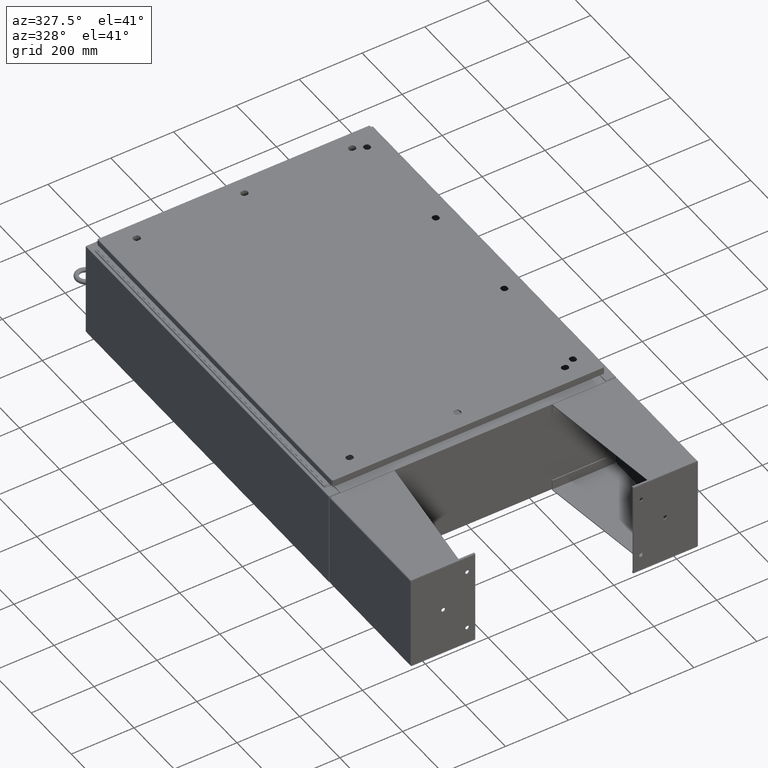
[diagram: clean part render]
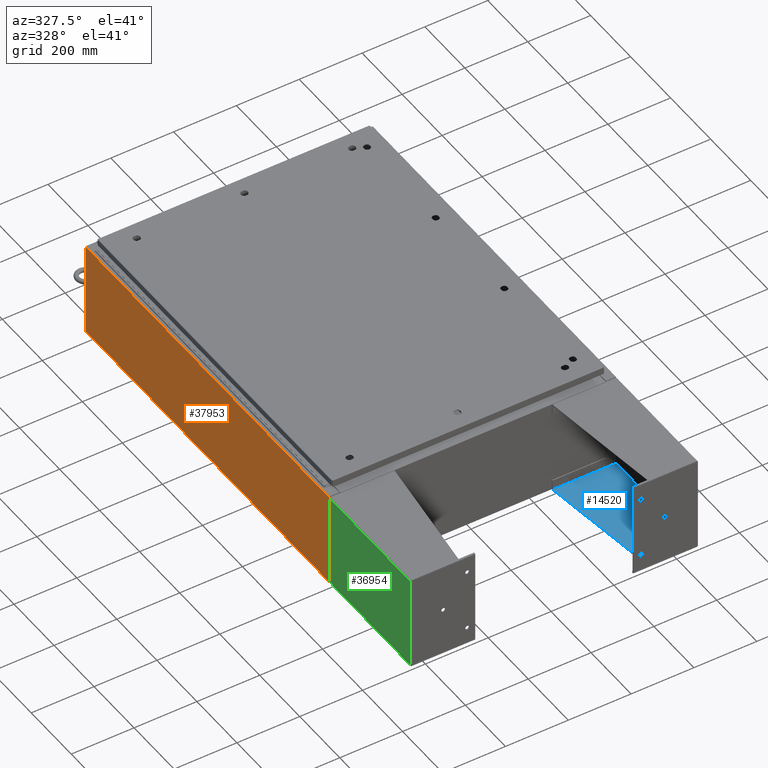
[diagram: same view with three faces highlighted in distinct colors, each labeled with its STEP entity id]
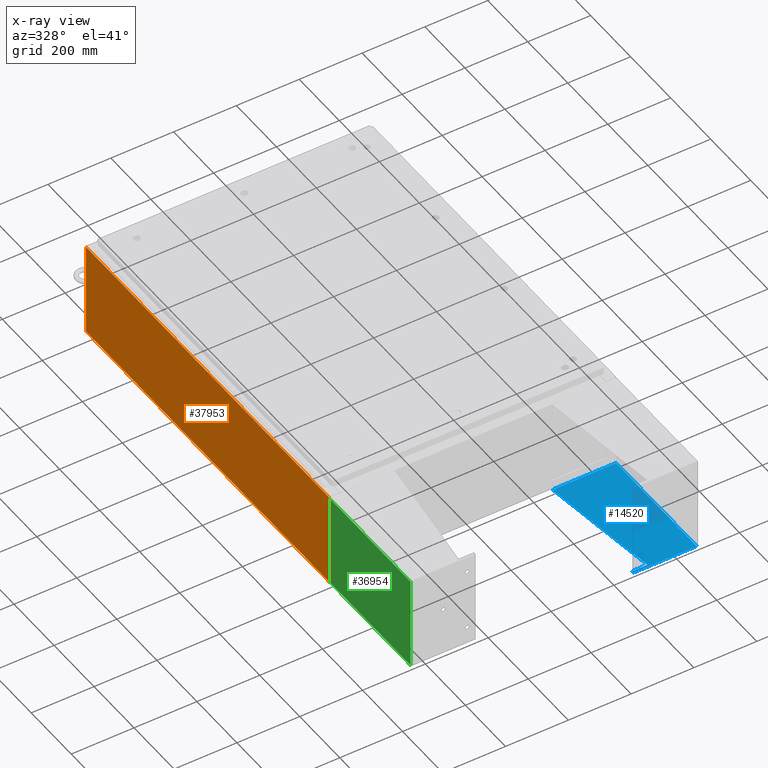
[diagram: x-ray of the same camera — body ghosted, the three highlighted faces saturated]
A machine part, auxiliary view with three faces highlighted in distinct colors.
The next image is the same camera in x-ray (body ghosted, the three faces saturated) — at least one of them is partly hidden behind the body in this view.
Their STEP definitions:

[orange] entity #37953 — the highlighted planar face has unit normal (1, 0, 0).
#998 = CARTESIAN_POINT ( 'NONE',  ( -18.00000000000000400, 23.92529999999998900, 0.01299999999999984700 ) ) ;
#3640 = EDGE_LOOP ( 'NONE', ( #8777, #32469, #11163, #16586 ) ) ;
#5672 = EDGE_CURVE ( 'NONE', #16894, #41294, #24012, .T. ) ;
#6476 = PLANE ( 'NONE',  #31531 ) ;
#7401 = EDGE_CURVE ( 'NONE', #42002, #9453, #27108, .T. ) ;
#8777 = ORIENTED_EDGE ( 'NONE', *, *, #5672, .T. ) ;
#9453 = VERTEX_POINT ( 'NONE', #998 ) ;
#10872 = CARTESIAN_POINT ( 'NONE',  ( -18.00000000000000400, 23.92529999999998900, 0.01299999999999984700 ) ) ;
#10925 = CARTESIAN_POINT ( 'NONE',  ( -18.00000000000004600, -23.92529999999998600, 11.83760000000000200 ) ) ;
#11163 = ORIENTED_EDGE ( 'NONE', *, *, #7401, .F. ) ;
#11809 = VECTOR ( 'NONE', #18725, 39.37007874015748100 ) ;
#12086 = CARTESIAN_POINT ( 'NONE',  ( -18.00000000000004600, 23.92529999999998900, 11.83760000000000200 ) ) ;
#15593 = DIRECTION ( 'NONE',  ( 3.482016343714355500E-015, 0.0000000000000000000, -1.000000000000000000 ) ) ;
#16586 = ORIENTED_EDGE ( 'NONE', *, *, #33296, .T. ) ;
#16695 = VECTOR ( 'NONE', #15593, 39.37007874015748100 ) ;
#16894 = VERTEX_POINT ( 'NONE', #10925 ) ;
#18725 = DIRECTION ( 'NONE',  ( 0.0000000000000000000, 1.000000000000000000, 0.0000000000000000000 ) ) ;
#18930 = DIRECTION ( 'NONE',  ( 1.000000000000000000, 0.0000000000000000000, 3.482016343714355100E-015 ) ) ;
#24012 = LINE ( 'NONE', #47504, #11809 ) ;
#24136 = FACE_OUTER_BOUND ( 'NONE', #3640, .T. ) ;
#27108 = LINE ( 'NONE', #10872, #28414 ) ;
#28414 = VECTOR ( 'NONE', #43740, 39.37007874015748100 ) ;
#30641 = CARTESIAN_POINT ( 'NONE',  ( -18.00000000000000400, -23.92529999999998600, 0.01299999999999984700 ) ) ;
#31531 = AXIS2_PLACEMENT_3D ( 'NONE', #51665, #18930, #47697 ) ;
#32469 = ORIENTED_EDGE ( 'NONE', *, *, #33733, .T. ) ;
#33296 = EDGE_CURVE ( 'NONE', #42002, #16894, #46983, .T. ) ;
#33733 = EDGE_CURVE ( 'NONE', #41294, #9453, #49520, .T. ) ;
#37953 = ADVANCED_FACE ( 'NONE', ( #24136 ), #6476, .F. ) ;
#41294 = VERTEX_POINT ( 'NONE', #12086 ) ;
#42002 = VERTEX_POINT ( 'NONE', #30641 ) ;
#43740 = DIRECTION ( 'NONE',  ( -0.0000000000000000000, 1.000000000000000000, -0.0000000000000000000 ) ) ;
#44352 = CARTESIAN_POINT ( 'NONE',  ( -18.00000000000000400, 23.92529999999998900, -6.293710784286998800E-014 ) ) ;
#44767 = CARTESIAN_POINT ( 'NONE',  ( -18.00000000000000400, -23.92529999999999600, -6.293710784286998800E-014 ) ) ;
#45684 = VECTOR ( 'NONE', #53070, 39.37007874015748100 ) ;
#46983 = LINE ( 'NONE', #44767, #45684 ) ;
#47504 = CARTESIAN_POINT ( 'NONE',  ( -18.00000000000004600, -23.92529999999998900, 11.83760000000000200 ) ) ;
#47697 = DIRECTION ( 'NONE',  ( 3.482016343714355100E-015, 0.0000000000000000000, -1.000000000000000000 ) ) ;
#49520 = LINE ( 'NONE', #44352, #16695 ) ;
#51665 = CARTESIAN_POINT ( 'NONE',  ( -18.00000000000000400, 0.0000000000000000000, -6.293710784286998800E-014 ) ) ;
#53070 = DIRECTION ( 'NONE',  ( -3.482016343714355500E-015, 0.0000000000000000000, 1.000000000000000000 ) ) ;

[blue] entity #14520 — the highlighted planar face has unit normal (-0, 0, 1).
#302 = EDGE_CURVE ( 'NONE', #22162, #20625, #17615, .T. ) ;
#572 = CARTESIAN_POINT ( 'NONE',  ( -5.896000000000021200, -7.749999999999999100, 6.052216497445934700 ) ) ;
#1323 = CARTESIAN_POINT ( 'NONE',  ( -5.896000000000000800, -7.999999999999999100, 0.03899999999999923000 ) ) ;
#1742 = VECTOR ( 'NONE', #33005, 39.37007874015748100 ) ;
#1812 = CARTESIAN_POINT ( 'NONE',  ( -5.896000000000029200, -7.749999999999999100, 8.001000000000015400 ) ) ;
#2737 = CARTESIAN_POINT ( 'NONE',  ( -5.896000000000030100, 8.000000000000001800, 8.000999999999999400 ) ) ;
#3278 = FACE_OUTER_BOUND ( 'NONE', #38276, .T. ) ;
#4089 = EDGE_CURVE ( 'NONE', #20625, #40148, #27418, .T. ) ;
#4196 = CARTESIAN_POINT ( 'NONE',  ( -5.896000000000000800, 8.000000000000001800, 0.03900000000000031900 ) ) ;
#5229 = CARTESIAN_POINT ( 'NONE',  ( -5.896000000000030100, 8.000000000000001800, 8.000999999999999400 ) ) ;
#6659 = VECTOR ( 'NONE', #10406, 39.37007874015748100 ) ;
#6897 = ORIENTED_EDGE ( 'NONE', *, *, #13940, .F. ) ;
#9023 = EDGE_CURVE ( 'NONE', #41345, #37241, #24974, .T. ) ;
#9534 = CARTESIAN_POINT ( 'NONE',  ( -5.896000000000015900, 7.857000000000001100, 8.000999999999999400 ) ) ;
#10406 = DIRECTION ( 'NONE',  ( -0.0000000000000000000, 1.000000000000000000, -0.0000000000000000000 ) ) ;
#13026 = DIRECTION ( 'NONE',  ( 0.0000000000000000000, 0.0000000000000000000, -1.000000000000000000 ) ) ;
#13467 = DIRECTION ( 'NONE',  ( -4.399772607369798900E-016, 0.9922942345449394800, 0.1239038017531047700 ) ) ;
#13884 = VECTOR ( 'NONE', #51179, 39.37007874015748100 ) ;
#13940 = EDGE_CURVE ( 'NONE', #37241, #22162, #16872, .T. ) ;
#14520 = ADVANCED_FACE ( 'NONE', ( #3278 ), #20245, .T. ) ;
#15470 = EDGE_CURVE ( 'NONE', #36165, #41345, #17340, .T. ) ;
#15713 = ORIENTED_EDGE ( 'NONE', *, *, #15470, .F. ) ;
#16872 = LINE ( 'NONE', #45676, #29146 ) ;
#17340 = LINE ( 'NONE', #9534, #25702 ) ;
#17615 = LINE ( 'NONE', #2737, #6659 ) ;
#17872 = CARTESIAN_POINT ( 'NONE',  ( -5.896000000000015900, 7.857000000000001100, 8.000999999999999400 ) ) ;
#18136 = LINE ( 'NONE', #43892, #48404 ) ;
#20245 = PLANE ( 'NONE',  #39849 ) ;
#20625 = VERTEX_POINT ( 'NONE', #31295 ) ;
#22162 = VERTEX_POINT ( 'NONE', #39313 ) ;
#22914 = EDGE_CURVE ( 'NONE', #40148, #36165, #18136, .T. ) ;
#24974 = LINE ( 'NONE', #4196, #1742 ) ;
#25523 = ORIENTED_EDGE ( 'NONE', *, *, #4089, .F. ) ;
#25702 = VECTOR ( 'NONE', #13026, 39.37007874015748100 ) ;
#27418 = LINE ( 'NONE', #1812, #13884 ) ;
#28343 = DIRECTION ( 'NONE',  ( 3.550958521948298200E-015, 0.0000000000000000000, -1.000000000000000000 ) ) ;
#29146 = VECTOR ( 'NONE', #42407, 39.37007874015748100 ) ;
#31024 = ORIENTED_EDGE ( 'NONE', *, *, #22914, .F. ) ;
#31295 = CARTESIAN_POINT ( 'NONE',  ( -5.896000000000029200, -7.749999999999999100, 8.001000000000015400 ) ) ;
#32925 = CARTESIAN_POINT ( 'NONE',  ( -5.896000000000000800, 7.857000000000002000, 0.03900000000000031900 ) ) ;
#33005 = DIRECTION ( 'NONE',  ( 0.0000000000000000000, -1.000000000000000000, 0.0000000000000000000 ) ) ;
#36165 = VERTEX_POINT ( 'NONE', #17872 ) ;
#37241 = VERTEX_POINT ( 'NONE', #1323 ) ;
#37564 = ORIENTED_EDGE ( 'NONE', *, *, #302, .F. ) ;
#38206 = ORIENTED_EDGE ( 'NONE', *, *, #9023, .F. ) ;
#38276 = EDGE_LOOP ( 'NONE', ( #31024, #25523, #37564, #6897, #38206, #15713 ) ) ;
#39313 = CARTESIAN_POINT ( 'NONE',  ( -5.896000000000030100, -7.999999999999999100, 8.000999999999999400 ) ) ;
#39849 = AXIS2_PLACEMENT_3D ( 'NONE', #5229, #40707, #28343 ) ;
#40148 = VERTEX_POINT ( 'NONE', #572 ) ;
#40707 = DIRECTION ( 'NONE',  ( 1.000000000000000000, 0.0000000000000000000, 3.550958521948298200E-015 ) ) ;
#41345 = VERTEX_POINT ( 'NONE', #32925 ) ;
#42407 = DIRECTION ( 'NONE',  ( -3.550958521948298200E-015, -0.0000000000000000000, 1.000000000000000000 ) ) ;
#43892 = CARTESIAN_POINT ( 'NONE',  ( -5.896000000000023900, -7.749999999999999100, 6.052216497445934700 ) ) ;
#45676 = CARTESIAN_POINT ( 'NONE',  ( -5.896000000000030100, -7.999999999999999100, 8.000999999999999400 ) ) ;
#48404 = VECTOR ( 'NONE', #13467, 39.37007874015748100 ) ;
#51179 = DIRECTION ( 'NONE',  ( 3.550958521948298200E-015, 0.0000000000000000000, -1.000000000000000000 ) ) ;

[green] entity #36954 — the highlighted planar face has unit normal (-1, 0, -0).
#1002 = VERTEX_POINT ( 'NONE', #22097 ) ;
#1209 = EDGE_CURVE ( 'NONE', #31745, #27370, #45277, .T. ) ;
#1716 = CARTESIAN_POINT ( 'NONE',  ( -5.857000000000000200, 7.856999999999998400, -0.1039999999999999000 ) ) ;
#1770 = VERTEX_POINT ( 'NONE', #1716 ) ;
#1964 = LINE ( 'NONE', #27376, #32309 ) ;
#2406 = EDGE_CURVE ( 'NONE', #31745, #1770, #1964, .T. ) ;
#2668 = DIRECTION ( 'NONE',  ( 1.000000000000000000, 0.0000000000000000000, 0.0000000000000000000 ) ) ;
#2943 = CARTESIAN_POINT ( 'NONE',  ( -6.000000000000000900, -7.999999999999999100, -0.1039999999999999800 ) ) ;
#3643 = LINE ( 'NONE', #5202, #46124 ) ;
#4265 = DIRECTION ( 'NONE',  ( 1.000000000000000000, 0.0000000000000000000, 0.0000000000000000000 ) ) ;
#5202 = CARTESIAN_POINT ( 'NONE',  ( 5.857000000000000200, 8.000000000000001800, -0.1039999999999998600 ) ) ;
#10439 = EDGE_CURVE ( 'NONE', #1002, #27370, #3643, .T. ) ;
#10626 = DIRECTION ( 'NONE',  ( 0.0000000000000000000, 0.0000000000000000000, -1.000000000000000000 ) ) ;
#14333 = DIRECTION ( 'NONE',  ( -0.0000000000000000000, -1.000000000000000000, -0.0000000000000000000 ) ) ;
#14533 = VECTOR ( 'NONE', #2668, 39.37007874015748100 ) ;
#15299 = DIRECTION ( 'NONE',  ( -0.0000000000000000000, 1.000000000000000000, -0.0000000000000000000 ) ) ;
#15848 = FACE_OUTER_BOUND ( 'NONE', #43793, .T. ) ;
#22097 = CARTESIAN_POINT ( 'NONE',  ( 5.857000000000000200, 7.857000000000001100, -0.1039999999999998600 ) ) ;
#22936 = ORIENTED_EDGE ( 'NONE', *, *, #41179, .T. ) ;
#23433 = VECTOR ( 'NONE', #4265, 39.37007874015748100 ) ;
#23811 = ORIENTED_EDGE ( 'NONE', *, *, #2406, .T. ) ;
#24583 = AXIS2_PLACEMENT_3D ( 'NONE', #47487, #10626, #39346 ) ;
#26530 = CARTESIAN_POINT ( 'NONE',  ( 5.857000000000000200, -7.999999999999989300, -0.1039999999999998600 ) ) ;
#26970 = PLANE ( 'NONE',  #24583 ) ;
#27370 = VERTEX_POINT ( 'NONE', #26530 ) ;
#27376 = CARTESIAN_POINT ( 'NONE',  ( -5.857000000000000200, -7.999999999999999100, -0.1039999999999998600 ) ) ;
#28020 = CARTESIAN_POINT ( 'NONE',  ( -5.857000000000000200, -8.000000000000000000, -0.1039999999999998600 ) ) ;
#31745 = VERTEX_POINT ( 'NONE', #28020 ) ;
#32309 = VECTOR ( 'NONE', #15299, 39.37007874015748100 ) ;
#35531 = ORIENTED_EDGE ( 'NONE', *, *, #10439, .T. ) ;
#36427 = LINE ( 'NONE', #52187, #14533 ) ;
#36954 = ADVANCED_FACE ( 'NONE', ( #15848 ), #26970, .T. ) ;
#39346 = DIRECTION ( 'NONE',  ( -1.000000000000000000, 0.0000000000000000000, -0.0000000000000000000 ) ) ;
#41179 = EDGE_CURVE ( 'NONE', #1770, #1002, #36427, .T. ) ;
#43793 = EDGE_LOOP ( 'NONE', ( #23811, #22936, #35531, #44071 ) ) ;
#44071 = ORIENTED_EDGE ( 'NONE', *, *, #1209, .F. ) ;
#45277 = LINE ( 'NONE', #2943, #23433 ) ;
#46124 = VECTOR ( 'NONE', #14333, 39.37007874015748100 ) ;
#47487 = CARTESIAN_POINT ( 'NONE',  ( 5.999999999999996400, 8.000000000000001800, -0.1039999999999999800 ) ) ;
#52187 = CARTESIAN_POINT ( 'NONE',  ( -5.857000000000000200, 7.857000000000001100, -0.1039999999999998600 ) ) ;